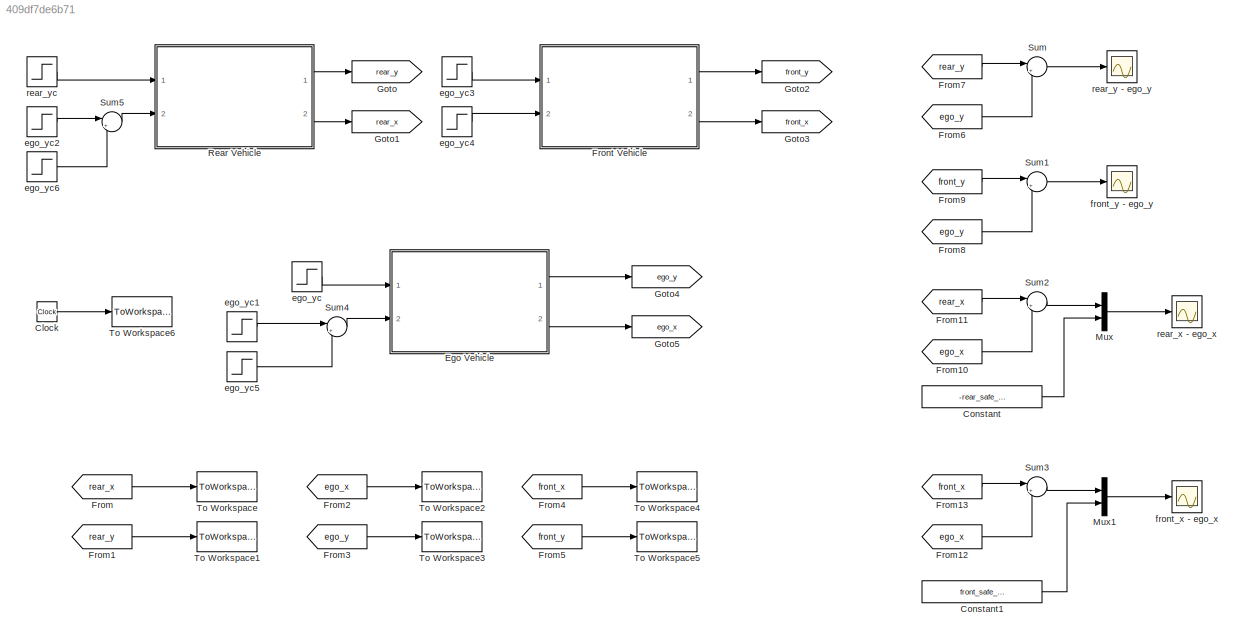
MODEL slx_409df7de6b71
KIND model
CONFIG AbsTol = auto
CONFIG EnableMultiTasking = off
CONFIG FixedStep = dt
CONFIG MaxStep = auto
CONFIG MinStep = auto
CONFIG RelTol = 1e-3
CONFIG SampleTimeConstraint = Unconstrained
CONFIG Solver = ode8
CONFIG SolverName = ode8
CONFIG StartTime = 0.0
CONFIG StopTime = 30
BLOCK [Clock] Clock
BLOCK [Constant] Constant
  Value = -rear_safe_distance
BLOCK [Constant] Constant1
  Value = front_safe_distance
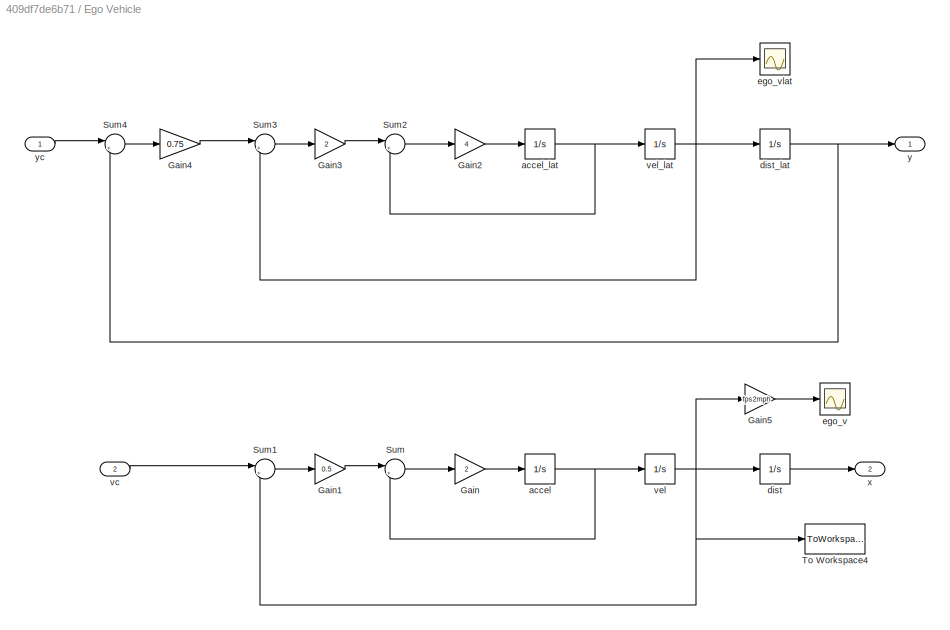
BLOCK [SubSystem] Ego Vehicle
  Ports = [2, 2]
  RequestExecContextInheritance = off
BLOCK [Gain] Ego Vehicle/Gain
  Gain = 2
  OutDataTypeStr = Inherit: Inherit via internal rule
  ParamDataTypeStr = Inherit: Inherit via internal rule
  SaturateOnIntegerOverflow = off
BLOCK [Gain] Ego Vehicle/Gain1
  Gain = 0.5
  OutDataTypeStr = Inherit: Inherit via internal rule
  ParamDataTypeStr = Inherit: Inherit via internal rule
  SaturateOnIntegerOverflow = off
BLOCK [Gain] Ego Vehicle/Gain2
  Gain = 4
  OutDataTypeStr = Inherit: Inherit via internal rule
  ParamDataTypeStr = Inherit: Inherit via internal rule
  SaturateOnIntegerOverflow = off
BLOCK [Gain] Ego Vehicle/Gain3
  Gain = 2
  OutDataTypeStr = Inherit: Inherit via internal rule
  ParamDataTypeStr = Inherit: Inherit via internal rule
  SaturateOnIntegerOverflow = off
BLOCK [Gain] Ego Vehicle/Gain4
  Gain = 0.75
  OutDataTypeStr = Inherit: Inherit via internal rule
  ParamDataTypeStr = Inherit: Inherit via internal rule
  SaturateOnIntegerOverflow = off
BLOCK [Gain] Ego Vehicle/Gain5
  Gain = fps2mph
  OutDataTypeStr = Inherit: Inherit via internal rule
  ParamDataTypeStr = Inherit: Inherit via internal rule
  SaturateOnIntegerOverflow = off
BLOCK [Sum] Ego Vehicle/Sum
  IconShape = round
  InputSameDT = off
  Inputs = |+-
  OutDataTypeStr = Inherit: Inherit via internal rule
  Ports = [2, 1]
  SaturateOnIntegerOverflow = off
BLOCK [Sum] Ego Vehicle/Sum1
  IconShape = round
  InputSameDT = off
  Inputs = |+-
  OutDataTypeStr = Inherit: Inherit via internal rule
  Ports = [2, 1]
  SaturateOnIntegerOverflow = off
BLOCK [Sum] Ego Vehicle/Sum2
  IconShape = round
  InputSameDT = off
  Inputs = |+-
  OutDataTypeStr = Inherit: Inherit via internal rule
  Ports = [2, 1]
  SaturateOnIntegerOverflow = off
BLOCK [Sum] Ego Vehicle/Sum3
  IconShape = round
  InputSameDT = off
  Inputs = |+-
  OutDataTypeStr = Inherit: Inherit via internal rule
  Ports = [2, 1]
  SaturateOnIntegerOverflow = off
BLOCK [Sum] Ego Vehicle/Sum4
  IconShape = round
  InputSameDT = off
  Inputs = |+-
  OutDataTypeStr = Inherit: Inherit via internal rule
  Ports = [2, 1]
  SaturateOnIntegerOverflow = off
BLOCK [ToWorkspace] Ego Vehicle/To Workspace4
  FixptAsFi = on
  MaxDataPoints = inf
  Ports = [1]
  SampleTime = -1
  Save2DSignal = 3-D array (concatenate along third dimension)
  VariableName = ego_vel_sim
BLOCK [Integrator] Ego Vehicle/accel
  Ports = [1, 1]
BLOCK [Integrator] Ego Vehicle/accel_lat
  Ports = [1, 1]
BLOCK [Integrator] Ego Vehicle/dist
  InitialCondition = ego_dist
  Ports = [1, 1]
BLOCK [Integrator] Ego Vehicle/dist_lat
  InitialCondition = ego_distlat
  Ports = [1, 1]
BLOCK [Scope] Ego Vehicle/ego_v
  Floating = off
  NumInputPorts = 1
  Ports = [1]
  ScopeSpecificationString = Simulink.scopes.TimeScopeBlockCfg('CurrentConfiguration', extmgr.ConfigurationSet(extmgr.Configuration('Core','General UI',true),extmgr.Configuration('Core','Source UI',true),extmgr.Configuration('Sources','WiredSimulink',true,'DataLoggingVariableName','ScopeData2'),extmgr.Configuration('Visuals','Time Domain',true,'SerializedDisplays',{struct('MinYLimReal','59.4925','MaxYLimReal','64.56747','YLab...<+1422ch>
BLOCK [Scope] Ego Vehicle/ego_vlat
  Floating = off
  NumInputPorts = 1
  Ports = [1]
  ScopeSpecificationString = Simulink.scopes.TimeScopeBlockCfg('CurrentConfiguration', extmgr.ConfigurationSet(extmgr.Configuration('Core','General UI',true),extmgr.Configuration('Core','Source UI',true),extmgr.Configuration('Sources','WiredSimulink',true,'DataLoggingVariableName','ScopeData3'),extmgr.Configuration('Visuals','Time Domain',true,'SerializedDisplays',{struct('MinYLimReal','-0.98071','MaxYLimReal','8.56418','YLab...<+1422ch>
BLOCK [Inport] Ego Vehicle/vc
  IconDisplay = Port number
  Port = 2
BLOCK [Integrator] Ego Vehicle/vel
  InitialCondition = ego_vel
  Ports = [1, 1]
BLOCK [Integrator] Ego Vehicle/vel_lat
  Ports = [1, 1]
BLOCK [Outport] Ego Vehicle/x
  IconDisplay = Port number
  Port = 2
BLOCK [Outport] Ego Vehicle/y
  IconDisplay = Port number
BLOCK [Inport] Ego Vehicle/yc
  IconDisplay = Port number
BLOCK [From] From
  GotoTag = rear_x
BLOCK [From] From1
  GotoTag = rear_y
BLOCK [From] From10
  GotoTag = ego_x
BLOCK [From] From11
  GotoTag = rear_x
BLOCK [From] From12
  GotoTag = ego_x
BLOCK [From] From13
  GotoTag = front_x
BLOCK [From] From2
  GotoTag = ego_x
BLOCK [From] From3
  GotoTag = ego_y
BLOCK [From] From4
  GotoTag = front_x
BLOCK [From] From5
  GotoTag = front_y
BLOCK [From] From6
  GotoTag = ego_y
BLOCK [From] From7
  GotoTag = rear_y
BLOCK [From] From8
  GotoTag = ego_y
BLOCK [From] From9
  GotoTag = front_y
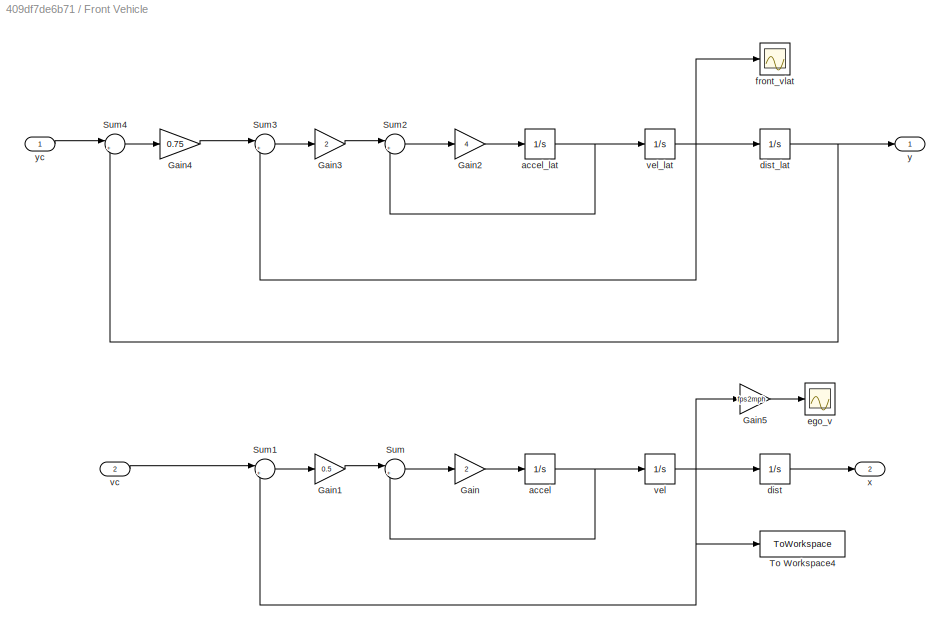
BLOCK [SubSystem] Front Vehicle
  Ports = [2, 2]
  RequestExecContextInheritance = off
BLOCK [Gain] Front Vehicle/Gain
  Gain = 2
  OutDataTypeStr = Inherit: Inherit via internal rule
  ParamDataTypeStr = Inherit: Inherit via internal rule
  SaturateOnIntegerOverflow = off
BLOCK [Gain] Front Vehicle/Gain1
  Gain = 0.5
  OutDataTypeStr = Inherit: Inherit via internal rule
  ParamDataTypeStr = Inherit: Inherit via internal rule
  SaturateOnIntegerOverflow = off
BLOCK [Gain] Front Vehicle/Gain2
  Gain = 4
  OutDataTypeStr = Inherit: Inherit via internal rule
  ParamDataTypeStr = Inherit: Inherit via internal rule
  SaturateOnIntegerOverflow = off
BLOCK [Gain] Front Vehicle/Gain3
  Gain = 2
  OutDataTypeStr = Inherit: Inherit via internal rule
  ParamDataTypeStr = Inherit: Inherit via internal rule
  SaturateOnIntegerOverflow = off
BLOCK [Gain] Front Vehicle/Gain4
  Gain = 0.75
  OutDataTypeStr = Inherit: Inherit via internal rule
  ParamDataTypeStr = Inherit: Inherit via internal rule
  SaturateOnIntegerOverflow = off
BLOCK [Gain] Front Vehicle/Gain5
  Gain = fps2mph
  OutDataTypeStr = Inherit: Inherit via internal rule
  ParamDataTypeStr = Inherit: Inherit via internal rule
  SaturateOnIntegerOverflow = off
BLOCK [Sum] Front Vehicle/Sum
  IconShape = round
  InputSameDT = off
  Inputs = |+-
  OutDataTypeStr = Inherit: Inherit via internal rule
  Ports = [2, 1]
  SaturateOnIntegerOverflow = off
BLOCK [Sum] Front Vehicle/Sum1
  IconShape = round
  InputSameDT = off
  Inputs = |+-
  OutDataTypeStr = Inherit: Inherit via internal rule
  Ports = [2, 1]
  SaturateOnIntegerOverflow = off
BLOCK [Sum] Front Vehicle/Sum2
  IconShape = round
  InputSameDT = off
  Inputs = |+-
  OutDataTypeStr = Inherit: Inherit via internal rule
  Ports = [2, 1]
  SaturateOnIntegerOverflow = off
BLOCK [Sum] Front Vehicle/Sum3
  IconShape = round
  InputSameDT = off
  Inputs = |+-
  OutDataTypeStr = Inherit: Inherit via internal rule
  Ports = [2, 1]
  SaturateOnIntegerOverflow = off
BLOCK [Sum] Front Vehicle/Sum4
  IconShape = round
  InputSameDT = off
  Inputs = |+-
  OutDataTypeStr = Inherit: Inherit via internal rule
  Ports = [2, 1]
  SaturateOnIntegerOverflow = off
BLOCK [ToWorkspace] Front Vehicle/To Workspace4
  FixptAsFi = on
  MaxDataPoints = inf
  Ports = [1]
  SampleTime = -1
  Save2DSignal = 3-D array (concatenate along third dimension)
  VariableName = front_vel_sim
BLOCK [Integrator] Front Vehicle/accel
  Ports = [1, 1]
BLOCK [Integrator] Front Vehicle/accel_lat
  Ports = [1, 1]
BLOCK [Integrator] Front Vehicle/dist
  InitialCondition = front_dist
  Ports = [1, 1]
BLOCK [Integrator] Front Vehicle/dist_lat
  InitialCondition = front_distlat
  Ports = [1, 1]
BLOCK [Scope] Front Vehicle/ego_v
  Floating = off
  NumInputPorts = 1
  Ports = [1]
  ScopeSpecificationString = Simulink.scopes.TimeScopeBlockCfg('CurrentConfiguration', extmgr.ConfigurationSet(extmgr.Configuration('Core','General UI',true),extmgr.Configuration('Core','Source UI',true),extmgr.Configuration('Sources','WiredSimulink',true,'DataLoggingVariableName','ScopeData2'),extmgr.Configuration('Visuals','Time Domain',true,'SerializedDisplays',{struct('MinYLimReal','50.00000','MaxYLimReal','70.00000','YLa...<+1400ch>
BLOCK [Scope] Front Vehicle/front_vlat
  Floating = off
  NumInputPorts = 1
  Ports = [1]
  ScopeSpecificationString = Simulink.scopes.TimeScopeBlockCfg('CurrentConfiguration', extmgr.ConfigurationSet(extmgr.Configuration('Core','General UI',true),extmgr.Configuration('Core','Source UI',true),extmgr.Configuration('Sources','WiredSimulink',true,'DataLoggingVariableName','ScopeData3'),extmgr.Configuration('Visuals','Time Domain',true,'SerializedDisplays',{struct('MinYLimReal','-1.00000','MaxYLimReal','1.00000','YLab...<+1396ch>
BLOCK [Inport] Front Vehicle/vc
  IconDisplay = Port number
  Port = 2
BLOCK [Integrator] Front Vehicle/vel
  InitialCondition = front_vel
  Ports = [1, 1]
BLOCK [Integrator] Front Vehicle/vel_lat
  Ports = [1, 1]
BLOCK [Outport] Front Vehicle/x
  IconDisplay = Port number
  Port = 2
BLOCK [Outport] Front Vehicle/y
  IconDisplay = Port number
BLOCK [Inport] Front Vehicle/yc
  IconDisplay = Port number
BLOCK [Goto] Goto
  GotoTag = rear_y
BLOCK [Goto] Goto1
  GotoTag = rear_x
BLOCK [Goto] Goto2
  GotoTag = front_y
BLOCK [Goto] Goto3
  GotoTag = front_x
BLOCK [Goto] Goto4
  GotoTag = ego_y
BLOCK [Goto] Goto5
  GotoTag = ego_x
BLOCK [Mux] Mux
  DisplayOption = bar
  Inputs = 2
  Ports = [2, 1]
BLOCK [Mux] Mux1
  DisplayOption = bar
  Inputs = 2
  Ports = [2, 1]
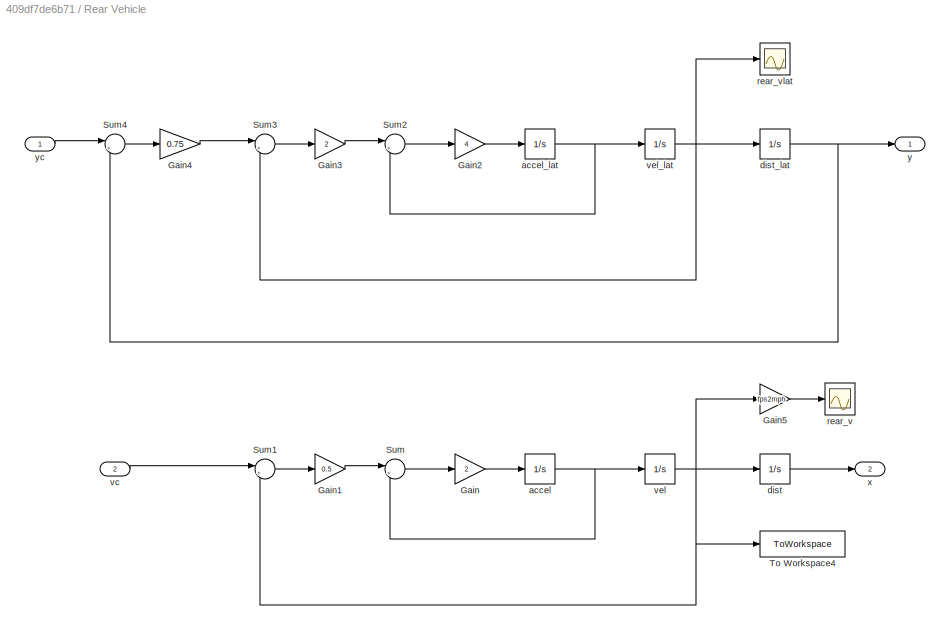
BLOCK [SubSystem] Rear Vehicle
  Ports = [2, 2]
  RequestExecContextInheritance = off
BLOCK [Gain] Rear Vehicle/Gain
  Gain = 2
  OutDataTypeStr = Inherit: Inherit via internal rule
  ParamDataTypeStr = Inherit: Inherit via internal rule
  SaturateOnIntegerOverflow = off
BLOCK [Gain] Rear Vehicle/Gain1
  Gain = 0.5
  OutDataTypeStr = Inherit: Inherit via internal rule
  ParamDataTypeStr = Inherit: Inherit via internal rule
  SaturateOnIntegerOverflow = off
BLOCK [Gain] Rear Vehicle/Gain2
  Gain = 4
  OutDataTypeStr = Inherit: Inherit via internal rule
  ParamDataTypeStr = Inherit: Inherit via internal rule
  SaturateOnIntegerOverflow = off
BLOCK [Gain] Rear Vehicle/Gain3
  Gain = 2
  OutDataTypeStr = Inherit: Inherit via internal rule
  ParamDataTypeStr = Inherit: Inherit via internal rule
  SaturateOnIntegerOverflow = off
BLOCK [Gain] Rear Vehicle/Gain4
  Gain = 0.75
  OutDataTypeStr = Inherit: Inherit via internal rule
  ParamDataTypeStr = Inherit: Inherit via internal rule
  SaturateOnIntegerOverflow = off
BLOCK [Gain] Rear Vehicle/Gain5
  Gain = fps2mph
  OutDataTypeStr = Inherit: Inherit via internal rule
  ParamDataTypeStr = Inherit: Inherit via internal rule
  SaturateOnIntegerOverflow = off
BLOCK [Sum] Rear Vehicle/Sum
  IconShape = round
  InputSameDT = off
  Inputs = |+-
  OutDataTypeStr = Inherit: Inherit via internal rule
  Ports = [2, 1]
  SaturateOnIntegerOverflow = off
BLOCK [Sum] Rear Vehicle/Sum1
  IconShape = round
  InputSameDT = off
  Inputs = |+-
  OutDataTypeStr = Inherit: Inherit via internal rule
  Ports = [2, 1]
  SaturateOnIntegerOverflow = off
BLOCK [Sum] Rear Vehicle/Sum2
  IconShape = round
  InputSameDT = off
  Inputs = |+-
  OutDataTypeStr = Inherit: Inherit via internal rule
  Ports = [2, 1]
  SaturateOnIntegerOverflow = off
BLOCK [Sum] Rear Vehicle/Sum3
  IconShape = round
  InputSameDT = off
  Inputs = |+-
  OutDataTypeStr = Inherit: Inherit via internal rule
  Ports = [2, 1]
  SaturateOnIntegerOverflow = off
BLOCK [Sum] Rear Vehicle/Sum4
  IconShape = round
  InputSameDT = off
  Inputs = |+-
  OutDataTypeStr = Inherit: Inherit via internal rule
  Ports = [2, 1]
  SaturateOnIntegerOverflow = off
BLOCK [ToWorkspace] Rear Vehicle/To Workspace4
  FixptAsFi = on
  MaxDataPoints = inf
  Ports = [1]
  SampleTime = -1
  Save2DSignal = 3-D array (concatenate along third dimension)
  VariableName = rear_vel_sim
BLOCK [Integrator] Rear Vehicle/accel
  Ports = [1, 1]
BLOCK [Integrator] Rear Vehicle/accel_lat
  Ports = [1, 1]
BLOCK [Integrator] Rear Vehicle/dist
  InitialCondition = rear_dist
  Ports = [1, 1]
BLOCK [Integrator] Rear Vehicle/dist_lat
  InitialCondition = rear_distlat
  Ports = [1, 1]
BLOCK [Scope] Rear Vehicle/rear_v
  Floating = off
  NumInputPorts = 1
  Ports = [1]
  ScopeSpecificationString = Simulink.scopes.TimeScopeBlockCfg('CurrentConfiguration', extmgr.ConfigurationSet(extmgr.Configuration('Core','General UI',true),extmgr.Configuration('Core','Source UI',true),extmgr.Configuration('Sources','WiredSimulink',true,'DataLoggingVariableName','ScopeData2'),extmgr.Configuration('Visuals','Time Domain',true,'SerializedDisplays',{struct('MinYLimReal','59.375','MaxYLimReal','65.625','YLabelR...<+1410ch>
BLOCK [Scope] Rear Vehicle/rear_vlat
  Floating = off
  NumInputPorts = 1
  Ports = [1]
  ScopeSpecificationString = Simulink.scopes.TimeScopeBlockCfg('CurrentConfiguration', extmgr.ConfigurationSet(extmgr.Configuration('Core','General UI',true),extmgr.Configuration('Core','Source UI',true),extmgr.Configuration('Sources','WiredSimulink',true,'DataLoggingVariableName','ScopeData3'),extmgr.Configuration('Visuals','Time Domain',true,'SerializedDisplays',{struct('MinYLimReal','-1.00000','MaxYLimReal','1.00000','YLab...<+1396ch>
BLOCK [Inport] Rear Vehicle/vc
  IconDisplay = Port number
  Port = 2
BLOCK [Integrator] Rear Vehicle/vel
  InitialCondition = rear_vel
  Ports = [1, 1]
BLOCK [Integrator] Rear Vehicle/vel_lat
  Ports = [1, 1]
BLOCK [Outport] Rear Vehicle/x
  IconDisplay = Port number
  Port = 2
BLOCK [Outport] Rear Vehicle/y
  IconDisplay = Port number
BLOCK [Inport] Rear Vehicle/yc
  IconDisplay = Port number
BLOCK [Sum] Sum
  IconShape = round
  InputSameDT = off
  Inputs = |+-
  OutDataTypeStr = Inherit: Inherit via internal rule
  Ports = [2, 1]
  SaturateOnIntegerOverflow = off
BLOCK [Sum] Sum1
  IconShape = round
  InputSameDT = off
  Inputs = |+-
  OutDataTypeStr = Inherit: Inherit via internal rule
  Ports = [2, 1]
  SaturateOnIntegerOverflow = off
BLOCK [Sum] Sum2
  IconShape = round
  InputSameDT = off
  Inputs = |+-
  OutDataTypeStr = Inherit: Inherit via internal rule
  Ports = [2, 1]
  SaturateOnIntegerOverflow = off
BLOCK [Sum] Sum3
  IconShape = round
  InputSameDT = off
  Inputs = |+-
  OutDataTypeStr = Inherit: Inherit via internal rule
  Ports = [2, 1]
  SaturateOnIntegerOverflow = off
BLOCK [Sum] Sum4
  IconShape = round
  InputSameDT = off
  Inputs = |++
  OutDataTypeStr = Inherit: Inherit via internal rule
  Ports = [2, 1]
  SaturateOnIntegerOverflow = off
BLOCK [Sum] Sum5
  IconShape = round
  InputSameDT = off
  Inputs = |++
  OutDataTypeStr = Inherit: Inherit via internal rule
  Ports = [2, 1]
  SaturateOnIntegerOverflow = off
BLOCK [ToWorkspace] To Workspace
  FixptAsFi = on
  MaxDataPoints = inf
  Ports = [1]
  SampleTime = -1
  Save2DSignal = 3-D array (concatenate along third dimension)
  VariableName = rear_x
BLOCK [ToWorkspace] To Workspace1
  FixptAsFi = on
  MaxDataPoints = inf
  Ports = [1]
  SampleTime = -1
  Save2DSignal = 3-D array (concatenate along third dimension)
  VariableName = rear_y
BLOCK [ToWorkspace] To Workspace2
  FixptAsFi = on
  MaxDataPoints = inf
  Ports = [1]
  SampleTime = -1
  Save2DSignal = 3-D array (concatenate along third dimension)
  VariableName = ego_x
BLOCK [ToWorkspace] To Workspace3
  FixptAsFi = on
  MaxDataPoints = inf
  Ports = [1]
  SampleTime = -1
  Save2DSignal = 3-D array (concatenate along third dimension)
  VariableName = ego_y
BLOCK [ToWorkspace] To Workspace4
  FixptAsFi = on
  MaxDataPoints = inf
  Ports = [1]
  SampleTime = -1
  Save2DSignal = 3-D array (concatenate along third dimension)
  VariableName = front_x
BLOCK [ToWorkspace] To Workspace5
  FixptAsFi = on
  MaxDataPoints = inf
  Ports = [1]
  SampleTime = -1
  Save2DSignal = 3-D array (concatenate along third dimension)
  VariableName = front_y
BLOCK [ToWorkspace] To Workspace6
  FixptAsFi = on
  MaxDataPoints = inf
  Ports = [1]
  SampleTime = -1
  Save2DSignal = 3-D array (concatenate along third dimension)
  VariableName = time
BLOCK [Step] ego_yc
  After = ego_distlatc
  Before = ego_dist
  SampleTime = 0
BLOCK [Step] ego_yc1
  After = ego_velc
  Before = ego_vel
  SampleTime = 0
BLOCK [Step] ego_yc2
  After = rear_velc
  Before = rear_vel
  SampleTime = 0
BLOCK [Step] ego_yc3
  After = front_distlatc
  Before = front_distlat
  SampleTime = 0
BLOCK [Step] ego_yc4
  After = front_vel
  Before = front_vel
  SampleTime = 0
BLOCK [Step] ego_yc5
  After = ego_velc2 - ego_velc
  SampleTime = 0
  Time = 4
BLOCK [Step] ego_yc6
  After = rear_vel2c - rear_velc
  SampleTime = 0
  Time = 4 + 2
BLOCK [Scope] front_x - ego_x
  Floating = off
  NumInputPorts = 1
  Ports = [1]
  ScopeSpecificationString = Simulink.scopes.TimeScopeBlockCfg('CurrentConfiguration', extmgr.ConfigurationSet(extmgr.Configuration('Core','General UI',true),extmgr.Configuration('Core','Source UI',true),extmgr.Configuration('Sources','WiredSimulink',true,'DataLoggingVariableName','ScopeData5'),extmgr.Configuration('Visuals','Time Domain',true,'SerializedDisplays',{struct('MinYLimReal','53.24375','MaxYLimReal','80.80625','YLa...<+1437ch>
BLOCK [Scope] front_y - ego_y
  Floating = off
  NumInputPorts = 1
  Ports = [1]
  ScopeSpecificationString = Simulink.scopes.TimeScopeBlockCfg('CurrentConfiguration', extmgr.ConfigurationSet(extmgr.Configuration('Core','General UI',true),extmgr.Configuration('Core','Source UI',true),extmgr.Configuration('Sources','WiredSimulink',true,'DataLoggingVariableName','ScopeData1'),extmgr.Configuration('Visuals','Time Domain',true,'SerializedDisplays',{struct('MinYLimReal','-1.5','MaxYLimReal','13.5','YLabelReal'...<+1418ch>
BLOCK [Scope] rear_x - ego_x
  Floating = off
  NumInputPorts = 1
  Ports = [1]
  ScopeSpecificationString = Simulink.scopes.TimeScopeBlockCfg('CurrentConfiguration', extmgr.ConfigurationSet(extmgr.Configuration('Core','General UI',true),extmgr.Configuration('Core','Source UI',true),extmgr.Configuration('Sources','WiredSimulink',true,'DataLoggingVariableName','ScopeData4'),extmgr.Configuration('Visuals','Time Domain',true,'SerializedDisplays',{struct('MinYLimReal','-100.34375','MaxYLimReal','-54.40625','...<+1463ch>
BLOCK [Scope] rear_y - ego_y
  Floating = off
  NumInputPorts = 1
  Ports = [1]
  ScopeSpecificationString = Simulink.scopes.TimeScopeBlockCfg('CurrentConfiguration', extmgr.ConfigurationSet(extmgr.Configuration('Core','General UI',true),extmgr.Configuration('Core','Source UI',true),extmgr.Configuration('Sources','WiredSimulink',true),extmgr.Configuration('Visuals','Time Domain',true,'SerializedDisplays',{struct('MinYLimReal','-1.5','MaxYLimReal','13.5','YLabelReal','','MinYLimMag','0.00000','MaxYLimMag'...<+1359ch>
BLOCK [Step] rear_yc
  After = rear_distlatc
  Before = rear_distlat
  SampleTime = 0
LINE Clock:1 -> To Workspace6:1
LINE Constant1:1 -> Mux1:2
LINE Constant:1 -> Mux:2
LINE Ego Vehicle/Gain1:1 -> Ego Vehicle/Sum:1
LINE Ego Vehicle/Gain2:1 -> Ego Vehicle/accel_lat:1
LINE Ego Vehicle/Gain3:1 -> Ego Vehicle/Sum2:1
LINE Ego Vehicle/Gain4:1 -> Ego Vehicle/Sum3:1
LINE Ego Vehicle/Gain5:1 -> Ego Vehicle/ego_v:1
LINE Ego Vehicle/Gain:1 -> Ego Vehicle/accel:1
LINE Ego Vehicle/Sum1:1 -> Ego Vehicle/Gain1:1
LINE Ego Vehicle/Sum2:1 -> Ego Vehicle/Gain2:1
LINE Ego Vehicle/Sum3:1 -> Ego Vehicle/Gain3:1
LINE Ego Vehicle/Sum4:1 -> Ego Vehicle/Gain4:1
LINE Ego Vehicle/Sum:1 -> Ego Vehicle/Gain:1
NET Ego Vehicle/accel:1 -> Ego Vehicle/Sum:2, Ego Vehicle/vel:1
NET Ego Vehicle/accel_lat:1 -> Ego Vehicle/Sum2:2, Ego Vehicle/vel_lat:1
LINE Ego Vehicle/dist:1 -> Ego Vehicle/x:1
NET Ego Vehicle/dist_lat:1 -> Ego Vehicle/Sum4:2, Ego Vehicle/y:1
LINE Ego Vehicle/vc:1 -> Ego Vehicle/Sum1:1
NET Ego Vehicle/vel:1 -> Ego Vehicle/Gain5:1, Ego Vehicle/Sum1:2, Ego Vehicle/To Workspace4:1, Ego Vehicle/dist:1
NET Ego Vehicle/vel_lat:1 -> Ego Vehicle/Sum3:2, Ego Vehicle/dist_lat:1, Ego Vehicle/ego_vlat:1
LINE Ego Vehicle/yc:1 -> Ego Vehicle/Sum4:1
LINE Ego Vehicle:1 -> Goto4:1
LINE Ego Vehicle:2 -> Goto5:1
LINE From10:1 -> Sum2:2
LINE From11:1 -> Sum2:1
LINE From12:1 -> Sum3:2
LINE From13:1 -> Sum3:1
LINE From1:1 -> To Workspace1:1
LINE From2:1 -> To Workspace2:1
LINE From3:1 -> To Workspace3:1
LINE From4:1 -> To Workspace4:1
LINE From5:1 -> To Workspace5:1
LINE From6:1 -> Sum:2
LINE From7:1 -> Sum:1
LINE From8:1 -> Sum1:2
LINE From9:1 -> Sum1:1
LINE From:1 -> To Workspace:1
LINE Front Vehicle/Gain1:1 -> Front Vehicle/Sum:1
LINE Front Vehicle/Gain2:1 -> Front Vehicle/accel_lat:1
LINE Front Vehicle/Gain3:1 -> Front Vehicle/Sum2:1
LINE Front Vehicle/Gain4:1 -> Front Vehicle/Sum3:1
LINE Front Vehicle/Gain5:1 -> Front Vehicle/ego_v:1
LINE Front Vehicle/Gain:1 -> Front Vehicle/accel:1
LINE Front Vehicle/Sum1:1 -> Front Vehicle/Gain1:1
LINE Front Vehicle/Sum2:1 -> Front Vehicle/Gain2:1
LINE Front Vehicle/Sum3:1 -> Front Vehicle/Gain3:1
LINE Front Vehicle/Sum4:1 -> Front Vehicle/Gain4:1
LINE Front Vehicle/Sum:1 -> Front Vehicle/Gain:1
NET Front Vehicle/accel:1 -> Front Vehicle/Sum:2, Front Vehicle/vel:1
NET Front Vehicle/accel_lat:1 -> Front Vehicle/Sum2:2, Front Vehicle/vel_lat:1
LINE Front Vehicle/dist:1 -> Front Vehicle/x:1
NET Front Vehicle/dist_lat:1 -> Front Vehicle/Sum4:2, Front Vehicle/y:1
LINE Front Vehicle/vc:1 -> Front Vehicle/Sum1:1
NET Front Vehicle/vel:1 -> Front Vehicle/Gain5:1, Front Vehicle/Sum1:2, Front Vehicle/To Workspace4:1, Front Vehicle/dist:1
NET Front Vehicle/vel_lat:1 -> Front Vehicle/Sum3:2, Front Vehicle/dist_lat:1, Front Vehicle/front_vlat:1
LINE Front Vehicle/yc:1 -> Front Vehicle/Sum4:1
LINE Front Vehicle:1 -> Goto2:1
LINE Front Vehicle:2 -> Goto3:1
LINE Mux1:1 -> front_x - ego_x:1
LINE Mux:1 -> rear_x - ego_x:1
LINE Rear Vehicle/Gain1:1 -> Rear Vehicle/Sum:1
LINE Rear Vehicle/Gain2:1 -> Rear Vehicle/accel_lat:1
LINE Rear Vehicle/Gain3:1 -> Rear Vehicle/Sum2:1
LINE Rear Vehicle/Gain4:1 -> Rear Vehicle/Sum3:1
LINE Rear Vehicle/Gain5:1 -> Rear Vehicle/rear_v:1
LINE Rear Vehicle/Gain:1 -> Rear Vehicle/accel:1
LINE Rear Vehicle/Sum1:1 -> Rear Vehicle/Gain1:1
LINE Rear Vehicle/Sum2:1 -> Rear Vehicle/Gain2:1
LINE Rear Vehicle/Sum3:1 -> Rear Vehicle/Gain3:1
LINE Rear Vehicle/Sum4:1 -> Rear Vehicle/Gain4:1
LINE Rear Vehicle/Sum:1 -> Rear Vehicle/Gain:1
NET Rear Vehicle/accel:1 -> Rear Vehicle/Sum:2, Rear Vehicle/vel:1
NET Rear Vehicle/accel_lat:1 -> Rear Vehicle/Sum2:2, Rear Vehicle/vel_lat:1
LINE Rear Vehicle/dist:1 -> Rear Vehicle/x:1
NET Rear Vehicle/dist_lat:1 -> Rear Vehicle/Sum4:2, Rear Vehicle/y:1
LINE Rear Vehicle/vc:1 -> Rear Vehicle/Sum1:1
NET Rear Vehicle/vel:1 -> Rear Vehicle/Gain5:1, Rear Vehicle/Sum1:2, Rear Vehicle/To Workspace4:1, Rear Vehicle/dist:1
NET Rear Vehicle/vel_lat:1 -> Rear Vehicle/Sum3:2, Rear Vehicle/dist_lat:1, Rear Vehicle/rear_vlat:1
LINE Rear Vehicle/yc:1 -> Rear Vehicle/Sum4:1
LINE Rear Vehicle:1 -> Goto:1
LINE Rear Vehicle:2 -> Goto1:1
LINE Sum1:1 -> front_y - ego_y:1
LINE Sum2:1 -> Mux:1
LINE Sum3:1 -> Mux1:1
LINE Sum4:1 -> Ego Vehicle:2
LINE Sum5:1 -> Rear Vehicle:2
LINE Sum:1 -> rear_y - ego_y:1
LINE ego_yc1:1 -> Sum4:1
LINE ego_yc2:1 -> Sum5:1
LINE ego_yc3:1 -> Front Vehicle:1
LINE ego_yc4:1 -> Front Vehicle:2
LINE ego_yc5:1 -> Sum4:2
LINE ego_yc6:1 -> Sum5:2
LINE ego_yc:1 -> Ego Vehicle:1
LINE rear_yc:1 -> Rear Vehicle:1
note: NET lines group one-source signal fan-out (src -> all destinations, sorted); 1:1 wires keep LINE
